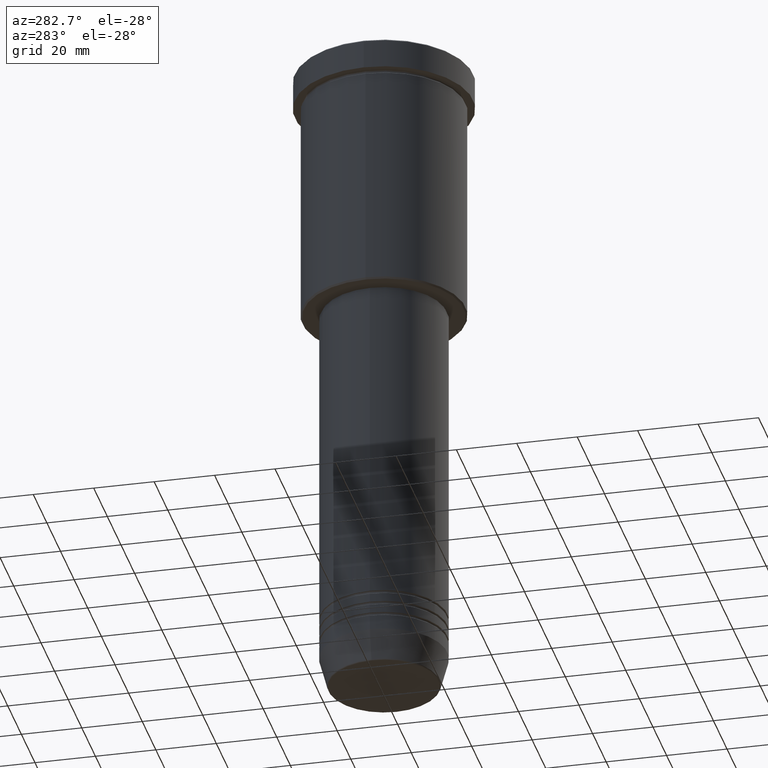
[diagram: clean part render]
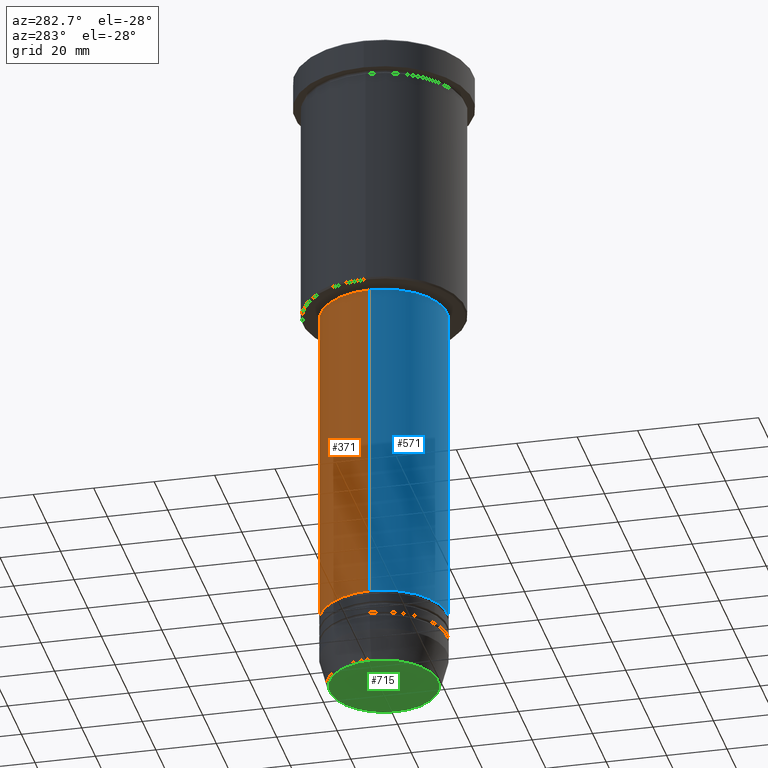
[diagram: same view with three faces highlighted in distinct colors, each labeled with its STEP entity id]
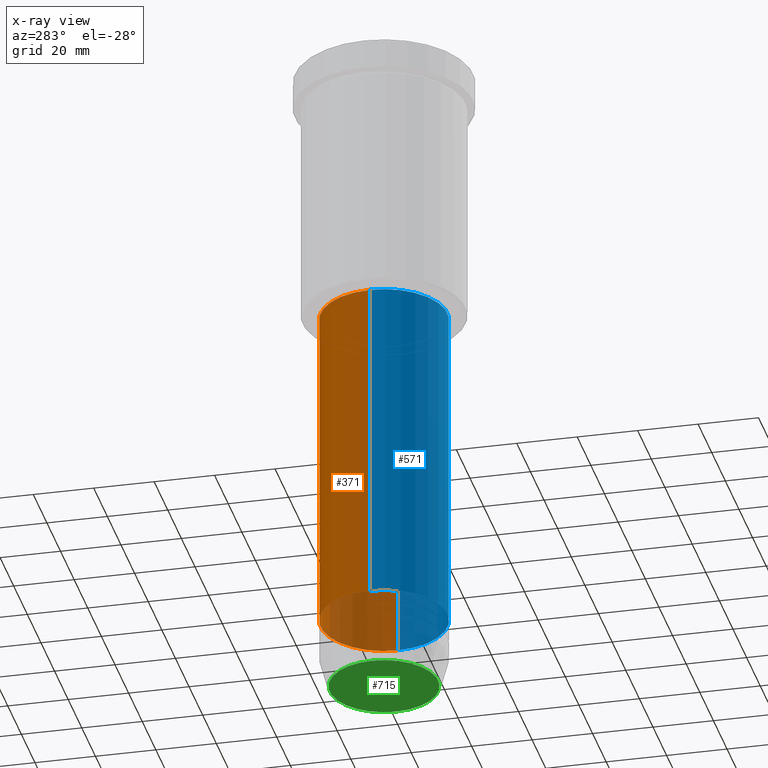
[diagram: x-ray of the same camera — body ghosted, the three highlighted faces saturated]
A machine part, auxiliary view with three faces highlighted in distinct colors.
The next image is the same camera in x-ray (body ghosted, the three faces saturated) — at least one of them is partly hidden behind the body in this view.
Their STEP definitions:

[orange] entity #371 — the highlighted cylindrical surface (partial cylindrical patch) has radius 21 mm, axis along (-0, -0, 1).
#43 = DIRECTION ( 'NONE',  ( 1.000000000000000000, 0.000000000000000000, 0.000000000000000000 ) ) ;
#81 = AXIS2_PLACEMENT_3D ( 'NONE', #219, #867, #43 ) ;
#86 = VECTOR ( 'NONE', #1172, 1000.000000000000000 ) ;
#119 = EDGE_CURVE ( 'NONE', #822, #438, #850, .T. ) ;
#135 = CARTESIAN_POINT ( 'NONE',  ( 0.000000000000000000, 0.000000000000000000, -87.00000000000004263 ) ) ;
#150 = ORIENTED_EDGE ( 'NONE', *, *, #228, .F. ) ;
#187 = VERTEX_POINT ( 'NONE', #1052 ) ;
#219 = CARTESIAN_POINT ( 'NONE',  ( 0.000000000000000000, 0.000000000000000000, -196.9999999999999147 ) ) ;
#228 = EDGE_CURVE ( 'NONE', #822, #494, #538, .T. ) ;
#235 = AXIS2_PLACEMENT_3D ( 'NONE', #135, #303, #947 ) ;
#303 = DIRECTION ( 'NONE',  ( -0.000000000000000000, -0.000000000000000000, 1.000000000000000000 ) ) ;
#344 = CARTESIAN_POINT ( 'NONE',  ( -20.99999999999999645, 2.571758278209441267E-15, 0.000000000000000000 ) ) ;
#347 = LINE ( 'NONE', #344, #928 ) ;
#356 = ORIENTED_EDGE ( 'NONE', *, *, #119, .T. ) ;
#360 = CARTESIAN_POINT ( 'NONE',  ( 0.000000000000000000, 0.000000000000000000, 0.000000000000000000 ) ) ;
#371 = ADVANCED_FACE ( 'NONE', ( #650 ), #824, .T. ) ;
#438 = VERTEX_POINT ( 'NONE', #570 ) ;
#463 = DIRECTION ( 'NONE',  ( 1.000000000000000000, 0.000000000000000000, 0.000000000000000000 ) ) ;
#465 = ORIENTED_EDGE ( 'NONE', *, *, #900, .F. ) ;
#494 = VERTEX_POINT ( 'NONE', #750 ) ;
#538 = LINE ( 'NONE', #811, #86 ) ;
#570 = CARTESIAN_POINT ( 'NONE',  ( -21.00000000000000000, 2.571758278209441661E-15, -196.9999999999999147 ) ) ;
#635 = EDGE_CURVE ( 'NONE', #438, #187, #347, .T. ) ;
#650 = FACE_OUTER_BOUND ( 'NONE', #1103, .T. ) ;
#702 = AXIS2_PLACEMENT_3D ( 'NONE', #360, #728, #463 ) ;
#728 = DIRECTION ( 'NONE',  ( -0.000000000000000000, -0.000000000000000000, 1.000000000000000000 ) ) ;
#750 = CARTESIAN_POINT ( 'NONE',  ( 20.99999999999999645, 0.000000000000000000, -87.00000000000004263 ) ) ;
#761 = CIRCLE ( 'NONE', #235, 20.99999999999999645 ) ;
#811 = CARTESIAN_POINT ( 'NONE',  ( 20.99999999999999645, 0.000000000000000000, 0.000000000000000000 ) ) ;
#822 = VERTEX_POINT ( 'NONE', #1000 ) ;
#824 = CYLINDRICAL_SURFACE ( 'NONE', #702, 20.99999999999999645 ) ;
#850 = CIRCLE ( 'NONE', #81, 21.00000000000000000 ) ;
#867 = DIRECTION ( 'NONE',  ( -0.000000000000000000, -0.000000000000000000, 1.000000000000000000 ) ) ;
#900 = EDGE_CURVE ( 'NONE', #494, #187, #761, .T. ) ;
#928 = VECTOR ( 'NONE', #980, 1000.000000000000000 ) ;
#947 = DIRECTION ( 'NONE',  ( 1.000000000000000000, 0.000000000000000000, 0.000000000000000000 ) ) ;
#980 = DIRECTION ( 'NONE',  ( -0.000000000000000000, -0.000000000000000000, 1.000000000000000000 ) ) ;
#1000 = CARTESIAN_POINT ( 'NONE',  ( 21.00000000000000000, 0.000000000000000000, -196.9999999999999147 ) ) ;
#1052 = CARTESIAN_POINT ( 'NONE',  ( -20.99999999999999645, 2.571758278209441267E-15, -87.00000000000004263 ) ) ;
#1053 = ORIENTED_EDGE ( 'NONE', *, *, #635, .T. ) ;
#1103 = EDGE_LOOP ( 'NONE', ( #356, #1053, #465, #150 ) ) ;
#1172 = DIRECTION ( 'NONE',  ( -0.000000000000000000, -0.000000000000000000, 1.000000000000000000 ) ) ;

[blue] entity #571 — the highlighted cylindrical surface (partial cylindrical patch) has radius 21 mm, axis along (-0, -0, 1).
#52 = DIRECTION ( 'NONE',  ( 1.000000000000000000, 0.000000000000000000, 0.000000000000000000 ) ) ;
#76 = ORIENTED_EDGE ( 'NONE', *, *, #228, .T. ) ;
#86 = VECTOR ( 'NONE', #1172, 1000.000000000000000 ) ;
#136 = EDGE_CURVE ( 'NONE', #438, #822, #229, .T. ) ;
#187 = VERTEX_POINT ( 'NONE', #1052 ) ;
#228 = EDGE_CURVE ( 'NONE', #822, #494, #538, .T. ) ;
#229 = CIRCLE ( 'NONE', #1156, 21.00000000000000000 ) ;
#321 = DIRECTION ( 'NONE',  ( -0.000000000000000000, -0.000000000000000000, 1.000000000000000000 ) ) ;
#340 = DIRECTION ( 'NONE',  ( 1.000000000000000000, 0.000000000000000000, 0.000000000000000000 ) ) ;
#344 = CARTESIAN_POINT ( 'NONE',  ( -20.99999999999999645, 2.571758278209441267E-15, 0.000000000000000000 ) ) ;
#347 = LINE ( 'NONE', #344, #928 ) ;
#358 = ORIENTED_EDGE ( 'NONE', *, *, #807, .F. ) ;
#438 = VERTEX_POINT ( 'NONE', #570 ) ;
#494 = VERTEX_POINT ( 'NONE', #750 ) ;
#530 = CYLINDRICAL_SURFACE ( 'NONE', #779, 20.99999999999999645 ) ;
#538 = LINE ( 'NONE', #811, #86 ) ;
#567 = AXIS2_PLACEMENT_3D ( 'NONE', #996, #737, #727 ) ;
#570 = CARTESIAN_POINT ( 'NONE',  ( -21.00000000000000000, 2.571758278209441661E-15, -196.9999999999999147 ) ) ;
#571 = ADVANCED_FACE ( 'NONE', ( #975 ), #530, .T. ) ;
#586 = CARTESIAN_POINT ( 'NONE',  ( 0.000000000000000000, 0.000000000000000000, -196.9999999999999147 ) ) ;
#635 = EDGE_CURVE ( 'NONE', #438, #187, #347, .T. ) ;
#727 = DIRECTION ( 'NONE',  ( 1.000000000000000000, 0.000000000000000000, 0.000000000000000000 ) ) ;
#737 = DIRECTION ( 'NONE',  ( -0.000000000000000000, -0.000000000000000000, 1.000000000000000000 ) ) ;
#750 = CARTESIAN_POINT ( 'NONE',  ( 20.99999999999999645, 0.000000000000000000, -87.00000000000004263 ) ) ;
#756 = EDGE_LOOP ( 'NONE', ( #1050, #994, #76, #358 ) ) ;
#779 = AXIS2_PLACEMENT_3D ( 'NONE', #1151, #1146, #340 ) ;
#807 = EDGE_CURVE ( 'NONE', #187, #494, #897, .T. ) ;
#811 = CARTESIAN_POINT ( 'NONE',  ( 20.99999999999999645, 0.000000000000000000, 0.000000000000000000 ) ) ;
#822 = VERTEX_POINT ( 'NONE', #1000 ) ;
#897 = CIRCLE ( 'NONE', #567, 20.99999999999999645 ) ;
#928 = VECTOR ( 'NONE', #980, 1000.000000000000000 ) ;
#975 = FACE_OUTER_BOUND ( 'NONE', #756, .T. ) ;
#980 = DIRECTION ( 'NONE',  ( -0.000000000000000000, -0.000000000000000000, 1.000000000000000000 ) ) ;
#994 = ORIENTED_EDGE ( 'NONE', *, *, #136, .T. ) ;
#996 = CARTESIAN_POINT ( 'NONE',  ( 0.000000000000000000, 0.000000000000000000, -87.00000000000004263 ) ) ;
#1000 = CARTESIAN_POINT ( 'NONE',  ( 21.00000000000000000, 0.000000000000000000, -196.9999999999999147 ) ) ;
#1050 = ORIENTED_EDGE ( 'NONE', *, *, #635, .F. ) ;
#1052 = CARTESIAN_POINT ( 'NONE',  ( -20.99999999999999645, 2.571758278209441267E-15, -87.00000000000004263 ) ) ;
#1146 = DIRECTION ( 'NONE',  ( -0.000000000000000000, -0.000000000000000000, 1.000000000000000000 ) ) ;
#1151 = CARTESIAN_POINT ( 'NONE',  ( 0.000000000000000000, 0.000000000000000000, 0.000000000000000000 ) ) ;
#1156 = AXIS2_PLACEMENT_3D ( 'NONE', #586, #321, #52 ) ;
#1172 = DIRECTION ( 'NONE',  ( -0.000000000000000000, -0.000000000000000000, 1.000000000000000000 ) ) ;

[green] entity #715 — the highlighted planar face has unit normal (0, -0, 1).
#62 = ORIENTED_EDGE ( 'NONE', *, *, #1011, .T. ) ;
#66 = CARTESIAN_POINT ( 'NONE',  ( 0.000000000000000000, 0.000000000000000000, -221.0000000000000284 ) ) ;
#109 = CIRCLE ( 'NONE', #911, 17.93684458169929030 ) ;
#144 = CIRCLE ( 'NONE', #314, 17.93684458169929030 ) ;
#168 = CARTESIAN_POINT ( 'NONE',  ( -17.93684458169929030, 2.226202879662624346E-15, -221.0000000000000284 ) ) ;
#171 = ORIENTED_EDGE ( 'NONE', *, *, #647, .T. ) ;
#214 = VERTEX_POINT ( 'NONE', #312 ) ;
#220 = VERTEX_POINT ( 'NONE', #168 ) ;
#249 = CARTESIAN_POINT ( 'NONE',  ( 0.000000000000000000, 0.000000000000000000, -221.0000000000000284 ) ) ;
#312 = CARTESIAN_POINT ( 'NONE',  ( 17.93684458169929030, 0.000000000000000000, -221.0000000000000284 ) ) ;
#314 = AXIS2_PLACEMENT_3D ( 'NONE', #66, #891, #718 ) ;
#518 = DIRECTION ( 'NONE',  ( 1.000000000000000000, 0.000000000000000000, 0.000000000000000000 ) ) ;
#559 = FACE_OUTER_BOUND ( 'NONE', #814, .T. ) ;
#626 = AXIS2_PLACEMENT_3D ( 'NONE', #638, #810, #906 ) ;
#638 = CARTESIAN_POINT ( 'NONE',  ( 0.000000000000000000, 0.000000000000000000, -221.0000000000000284 ) ) ;
#647 = EDGE_CURVE ( 'NONE', #220, #214, #144, .T. ) ;
#715 = ADVANCED_FACE ( 'NONE', ( #559 ), #1178, .F. ) ;
#718 = DIRECTION ( 'NONE',  ( 1.000000000000000000, 0.000000000000000000, 0.000000000000000000 ) ) ;
#810 = DIRECTION ( 'NONE',  ( 0.000000000000000000, -0.000000000000000000, 1.000000000000000000 ) ) ;
#814 = EDGE_LOOP ( 'NONE', ( #62, #171 ) ) ;
#891 = DIRECTION ( 'NONE',  ( 0.000000000000000000, 0.000000000000000000, -1.000000000000000000 ) ) ;
#906 = DIRECTION ( 'NONE',  ( 1.000000000000000000, 0.000000000000000000, 0.000000000000000000 ) ) ;
#911 = AXIS2_PLACEMENT_3D ( 'NONE', #249, #1163, #518 ) ;
#1011 = EDGE_CURVE ( 'NONE', #214, #220, #109, .T. ) ;
#1163 = DIRECTION ( 'NONE',  ( 0.000000000000000000, 0.000000000000000000, -1.000000000000000000 ) ) ;
#1178 = PLANE ( 'NONE',  #626 ) ;